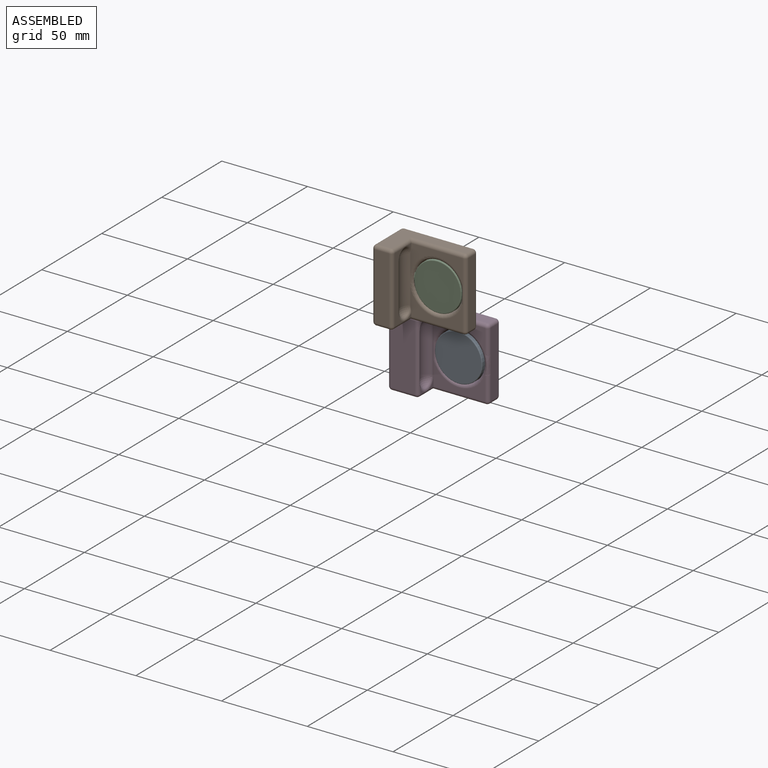
[diagram: assembled view]
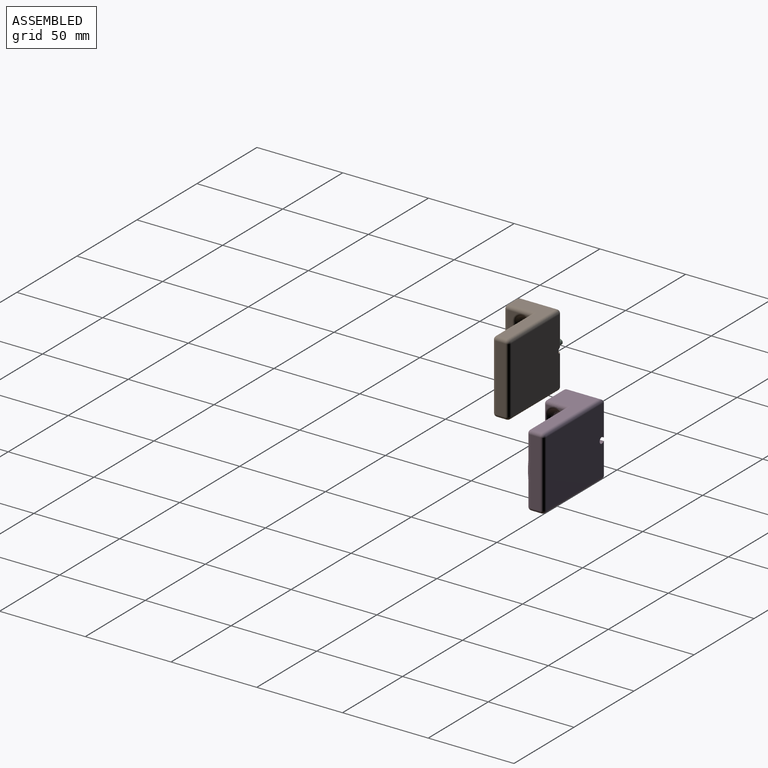
[diagram: assembled view, second angle]
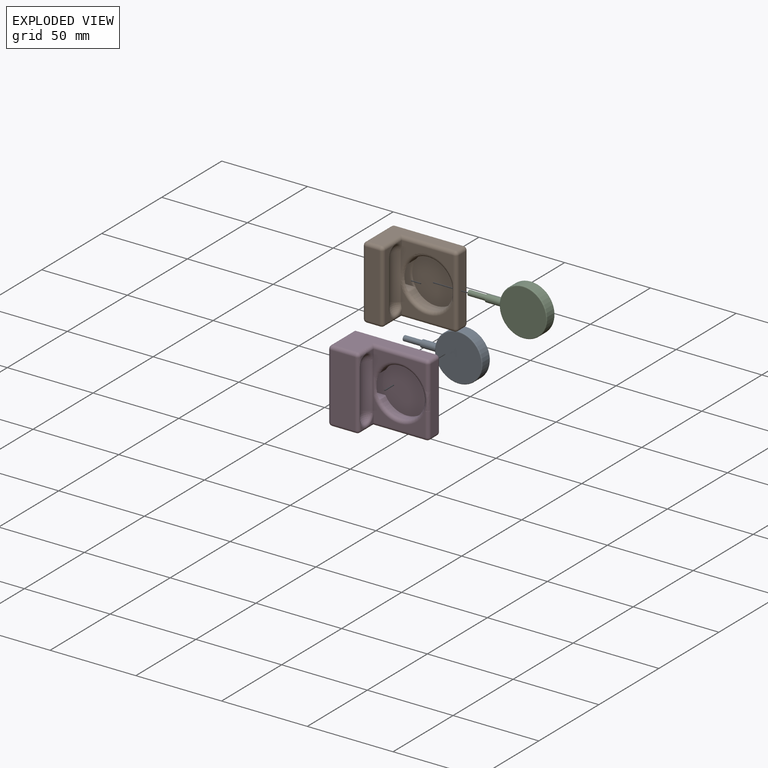
[diagram: exploded view]
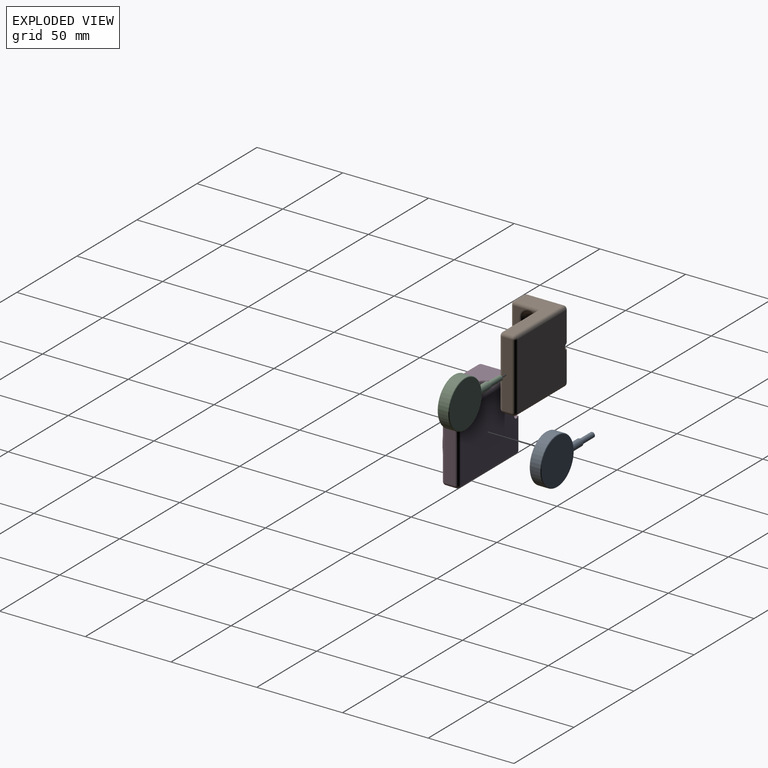
[diagram: exploded view, second angle]
ASSEMBLY  parts=4 mates=2
PART A: 9 faces, bbox 48.8x6.8x29.9 mm
  f0: cylinder r=2.1mm len=9.66mm, axis (1,0,0), area 126.4mm2, adj f1,f4
  f1: plane 4.2x4.2mm, normal (-1,0,0), area 6.8mm2, adj f0,f2
  f2: cylinder r=1.5mm len=10.5mm, axis (1,0,0), area 99mm2, adj f1,f3
  f3: plane 3x3mm, normal (-1,0,0), area 7.1mm2, adj f2
  f4: cylinder r=13.83mm len=27.65mm, axis (0,1,0), area 485.6mm2, adj f0,f7,f8
  f5: plane 26.65x26.65mm, normal (0,-1,0), area 557.8mm2, adj f8
  f6: plane 26.65x26.65mm, normal (0,1,0), area 557.8mm2, adj f7
  f7: torus R=13.32mm, axis (0,-1,0), area 67.3mm2, adj f4,f6
  f8: torus R=13.32mm, axis (0,-1,0), area 67.3mm2, adj f4,f5
PART B: 58 faces, bbox 44.7x25.4x43.5 mm
  f0: plane 30.57x15.61mm, normal (0,-1,0), area 190.2mm2, adj f2,f3,f6,f41,f42,f56
  f1: cylinder r=2mm len=17.85mm, axis (0,0,1), area 56.1mm2, adj f10,f29,f52,f55
  f2: torus R=6.1mm, axis (1,0,0), area 25.6mm2, adj f0,f3,f5,f6,f14,f24,f27
  f3: cylinder r=2mm len=27.18mm, axis (0,0,1), area 7.9mm2, adj f0,f2,f4,f12,f28,f56
  f4: torus R=6.1mm, axis (1,0,0), area 25.6mm2, adj f3,f5,f11,f13,f26,f27,f28
  f5: plane 38.58x6.87mm, normal (1,0,0), area 125.9mm2, adj f2,f4,f22,f24,f26,f27
  f6: plane 2.53x1.81mm, normal (1,0,0), area 1.9mm2, adj f0,f2,f24
  f7: plane 40x21.37mm, normal (0,0,1), area 351mm2, adj f17,f23,f26,f40,f45,f50
  f8: plane 38.58x8mm, normal (0,-1,0), area 308.6mm2, adj f16,f19,f22,f23
  f9: plane 40x21.37mm, normal (0,0,-1), area 351mm2, adj f18,f19,f24,f41,f46,f51
  f10: plane 38.58x21.37mm, normal (-1,0,0), area 741.8mm2, adj f1,f16,f17,f18,f33,f34,f35,f36
  f11: plane 2.53x1.81mm, normal (1,0,0), area 1.9mm2, adj f4,f26,f28
  f12: cylinder r=5.7mm len=27.18mm, axis (0,0,1), area 283.3mm2, adj f3,f13,f14,f27
  f13: sphere r=5.7mm, area 39.8mm2, adj f4,f12
  f14: sphere r=5.7mm, area 39.8mm2, adj f2,f12
  f15: sphere r=2mm, area 6.3mm2, adj f16,f18,f19
  f16: cylinder r=2mm len=38.58mm, axis (0,0,1), area 121.2mm2, adj f8,f10,f15,f20
  f17: cylinder r=2mm len=21.37mm, axis (0,1,0), area 67.1mm2, adj f7,f10,f20,f52
  f18: cylinder r=2mm len=21.37mm, axis (0,-1,0), area 67.1mm2, adj f9,f10,f15,f53
  f19: cylinder r=2mm len=8mm, axis (-1,0,0), area 25.1mm2, adj f8,f9,f15,f21
  f20: sphere r=2mm, area 6.3mm2, adj f16,f17,f23
  f21: sphere r=2mm, area 6.3mm2, adj f19,f22,f24
  f22: cylinder r=2mm len=38.58mm, axis (0,0,-1), area 121.2mm2, adj f5,f8,f21,f25
  f23: cylinder r=2mm len=8mm, axis (1,0,0), area 25.1mm2, adj f7,f8,f20,f25
  f24: cylinder r=2mm len=15.74mm, axis (0,1,0), area 45.7mm2, adj f2,f5,f6,f9,f21,f41
  f25: sphere r=2mm, area 6.3mm2, adj f22,f23,f26
  f26: cylinder r=2mm len=15.74mm, axis (0,-1,0), area 45.7mm2, adj f4,f5,f7,f11,f25,f40
  f27: cylinder r=2mm len=27.18mm, axis (0,0,1), area 49.7mm2, adj f2,f4,f5,f12
  f28: plane 30.57x15.61mm, normal (0,-1,0), area 190.2mm2, adj f3,f4,f11,f40,f42,f56
  f29: plane 40x38.58mm, normal (0,1,0), area 1541.7mm2, adj f1,f47,f50,f51,f54,f55
  f30: plane 38.58x5.63mm, normal (1,0,0), area 217mm2, adj f42,f45,f46,f47
  f31: cylinder r=14mm len=28mm, axis (0,-1,0), area 377.6mm2, adj f32,f37,f38,f56,f57
  f32: plane 28x28mm, normal (0,-1,0), area 615.8mm2, adj f31,f39
  f33: plane 14x13.47mm, normal (0,-1,0), area 164.4mm2, adj f10,f34,f36,f39,f55
  f34: plane 13.77x5.77mm, normal (0,0,-1), area 79.2mm2, adj f10,f33,f35,f37,f39
  f35: plane 14.81x14.59mm, normal (0,1,0), area 187.7mm2, adj f10,f34,f36,f37,f38,f56
  f36: plane 13.77x5.77mm, normal (0,0,1), area 79.2mm2, adj f10,f33,f35,f38,f39
  f37: cylinder r=2mm len=6.18mm, axis (0,-1,0), area 11.3mm2, adj f31,f34,f35,f39,f56
  f38: cylinder r=2mm len=6.18mm, axis (0,-1,0), area 11.3mm2, adj f31,f35,f36,f39,f56
  f39: torus R=15.23mm, axis (0,1,0), area 19.8mm2, adj f32,f33,f34,f36,f37,f38
  f40: cylinder r=2mm len=32mm, axis (1,0,0), area 97.4mm2, adj f7,f26,f28,f43
  f41: cylinder r=2mm len=32mm, axis (-1,0,0), area 97.4mm2, adj f0,f9,f24,f44
  f42: cylinder r=2mm len=38.58mm, axis (0,0,1), area 121.2mm2, adj f0,f28,f30,f43,f44,f57
  f43: sphere r=2mm, area 6.3mm2, adj f40,f42,f45
  f44: sphere r=2mm, area 6.3mm2, adj f41,f42,f46
  f45: cylinder r=2mm len=5.63mm, axis (0,1,0), area 17.7mm2, adj f7,f30,f43,f48
  f46: cylinder r=2mm len=5.63mm, axis (0,-1,0), area 17.7mm2, adj f9,f30,f44,f49
  f47: cylinder r=2mm len=38.58mm, axis (0,0,-1), area 121.2mm2, adj f29,f30,f48,f49
  f48: sphere r=2mm, area 6.3mm2, adj f45,f47,f50
  f49: sphere r=2mm, area 6.3mm2, adj f46,f47,f51
  f50: cylinder r=2mm len=40mm, axis (-1,0,0), area 125.7mm2, adj f7,f29,f48,f52
  f51: cylinder r=2mm len=40mm, axis (1,0,0), area 125.7mm2, adj f9,f29,f49,f53
  f52: sphere r=2mm, area 6.3mm2, adj f1,f17,f50
  f53: sphere r=2mm, area 6.3mm2, adj f18,f51,f54
  f54: cylinder r=2mm len=17.85mm, axis (0,0,1), area 56.1mm2, adj f10,f29,f53,f55
  f55: cylinder r=1.75mm len=3.5mm, axis (0,-1,0), area 19.1mm2, adj f1,f10,f29,f33,f54
  f56: torus R=16mm, axis (0,1,0), area 241mm2, adj f0,f3,f28,f31,f35,f37,f38,f57
  f57: bspline ~11.91x2.19mm, area 25.2mm2, adj f31,f42,f56
PART C: same geometry as A
PART D: 63 faces, bbox 52.1x24.3x43.7 mm
  f0: plane 30x13.73mm, normal (0,-1,0), area 184mm2, adj f7,f14,f20,f21,f42,f50
  f1: plane 2.53x1.81mm, normal (1,0,0), area 1.9mm2, adj f23,f24,f34
  f2: plane 4.36x3.78mm, normal (1,0,0), area 5.4mm2, adj f15,f25,f62
  f3: cylinder r=14mm len=28mm, axis (0,-1,0), area 296.9mm2, adj f7,f27,f30,f31
  f4: cylinder r=1.75mm len=3.5mm, axis (0,-1,0), area 27.9mm2, adj f5,f6,f8,f32
  f5: plane 3.15x0.31mm, normal (0,0,-1), area 1mm2, adj f4,f8,f13,f32
  f6: plane 3.15x0.31mm, normal (0,0,1), area 1mm2, adj f4,f8,f13,f32
  f7: torus R=16mm, axis (0,1,0), area 253mm2, adj f0,f3,f15,f28,f30,f31,f33,f53
  f8: plane 48x38.58mm, normal (0,1,0), area 1842mm2, adj f4,f5,f6,f13,f40,f48,f49
  f9: plane 2.53x1.81mm, normal (1,0,0), area 1.9mm2, adj f24,f25,f59
  f10: plane 46x18.65mm, normal (0,0,-1), area 453.2mm2, adj f34,f35,f37,f38,f39,f40,f41,f42
  f11: plane 46x18.65mm, normal (0,0,1), area 453.2mm2, adj f47,f48,f54,f55,f59,f60,f61,f62
  f12: plane 38.58x14mm, normal (0,-1,0), area 540.1mm2, adj f24,f38,f46,f54
  f13: plane 38.58x20.65mm, normal (-1,0,0), area 708.5mm2, adj f5,f6,f8,f30,f31,f32,f33,f39
  f14: plane 4.36x3.78mm, normal (1,0,0), area 5.4mm2, adj f0,f23,f37
  f15: plane 30x13.73mm, normal (0,-1,0), area 184mm2, adj f2,f7,f20,f22,f56,f60
  f16: plane 38.58x6.27mm, normal (1,0,0), area 233mm2, adj f41,f49,f50,f53,f55,f56
  f17: cylinder r=5.7mm len=27.18mm, axis (0,0,1), area 283.4mm2, adj f18,f19,f20,f26
  f18: sphere r=5.7mm, area 39.8mm2, adj f17,f22,f25
  f19: sphere r=5.7mm, area 39.8mm2, adj f17,f21,f23
  f20: cylinder r=2mm len=27.18mm, axis (0,0,1), area 45.6mm2, adj f0,f15,f17,f21,f22,f28
  f21: bspline ~3.33x1.94mm, area 2mm2, adj f0,f19,f20,f23
  f22: bspline ~3.33x1.94mm, area 2mm2, adj f15,f18,f20,f25
  f23: torus R=6.1mm, axis (1,0,0), area 26.6mm2, adj f1,f14,f19,f21,f24,f26,f35
  f24: cylinder r=2mm len=38.58mm, axis (0,0,-1), area 99mm2, adj f1,f9,f12,f23,f25,f26,f36,f57
  f25: torus R=6.1mm, axis (1,0,0), area 26.6mm2, adj f2,f9,f18,f22,f24,f26,f61
  f26: cylinder r=2mm len=27.18mm, axis (0,0,1), area 30.3mm2, adj f17,f23,f24,f25
  f27: plane 28x28mm, normal (0,-1,0), area 615.8mm2, adj f3,f29
  f28: bspline ~11.91x2.19mm, area 16.9mm2, adj f7,f20,f33
  f29: cylinder r=14mm len=14mm, axis (0,-1,0), area 11.7mm2, adj f27,f30,f31,f32
  f30: plane 20.95x5.92mm, normal (0,0,-1), area 122mm2, adj f3,f7,f13,f29,f32,f33
  f31: plane 20.95x5.92mm, normal (0,0,1), area 122mm2, adj f3,f7,f13,f29,f32,f33
  f32: plane 20.88x14mm, normal (0,-1,0), area 264.7mm2, adj f4,f5,f6,f13,f29,f30,f31
  f33: plane 20.77x14.21mm, normal (0,1,0), area 271.3mm2, adj f7,f13,f28,f30,f31
  f34: cylinder r=2mm len=2.53mm, axis (0,1,0), area 7.9mm2, adj f1,f10,f35,f36
  f35: bspline ~5.86x2.3mm, area 12.5mm2, adj f10,f23,f34,f37
  f36: sphere r=2mm, area 6.3mm2, adj f24,f34,f38
  f37: cylinder r=2mm len=5.78mm, axis (0,1,0), area 15mm2, adj f10,f14,f35,f42
  f38: cylinder r=2mm len=14mm, axis (-1,0,0), area 44mm2, adj f10,f12,f36,f43
  f39: cylinder r=2mm len=20.65mm, axis (0,-1,0), area 61.7mm2, adj f10,f13,f40,f43
  f40: cylinder r=2mm len=48mm, axis (1,0,0), area 147.7mm2, adj f8,f10,f39,f44
  f41: cylinder r=2mm len=6mm, axis (0,-1,0), area 18.8mm2, adj f10,f16,f44,f45
  f42: cylinder r=2mm len=32mm, axis (-1,0,0), area 97.4mm2, adj f0,f10,f37,f45
  f43: sphere r=2mm, area 6.3mm2, adj f38,f39,f46
  f44: sphere r=2mm, area 4mm2, adj f40,f41,f49
  f45: sphere r=2mm, area 6.3mm2, adj f41,f42,f50
  f46: cylinder r=2mm len=38.58mm, axis (0,0,1), area 121.2mm2, adj f12,f13,f43,f51
  f47: cylinder r=2mm len=20.65mm, axis (0,1,0), area 61.7mm2, adj f11,f13,f48,f51
  f48: cylinder r=2mm len=48mm, axis (-1,0,0), area 147.7mm2, adj f8,f11,f47,f52
  f49: cylinder r=2mm len=38.58mm, axis (0,0,-1), area 121.2mm2, adj f8,f16,f44,f52
  f50: cylinder r=2mm len=13.72mm, axis (0,0,1), area 43.1mm2, adj f0,f16,f45,f53
  f51: sphere r=2mm, area 6.3mm2, adj f46,f47,f54
  f52: sphere r=2mm, area 4mm2, adj f48,f49,f55
  f53: bspline ~12.89x2.37mm, area 27.3mm2, adj f7,f16,f50,f56
  f54: cylinder r=2mm len=14mm, axis (1,0,0), area 44mm2, adj f11,f12,f51,f57
  f55: cylinder r=2mm len=6mm, axis (0,1,0), area 18.8mm2, adj f11,f16,f52,f58
  f56: cylinder r=2mm len=13.72mm, axis (0,0,1), area 43.1mm2, adj f15,f16,f53,f58
  f57: sphere r=2mm, area 6.3mm2, adj f24,f54,f59
  f58: sphere r=2mm, area 6.3mm2, adj f55,f56,f60
  f59: cylinder r=2mm len=2.53mm, axis (0,-1,0), area 7.9mm2, adj f9,f11,f57,f61
  f60: cylinder r=2mm len=32mm, axis (1,0,0), area 97.4mm2, adj f11,f15,f58,f62
  f61: bspline ~6.22x2.45mm, area 12.5mm2, adj f11,f25,f59,f62
  f62: cylinder r=2mm len=5.78mm, axis (0,-1,0), area 15mm2, adj f2,f11,f60,f61
PLACE A t=(-15.47,-4.18,-83.81)mm
PLACE B t=(-15.96,-31.1,-95.91)mm
PLACE C t=(-14.78,-22.47,-39.39)mm
PLACE D t=(-16.64,-12.8,-140.33)mm
MATE fastened D.f7 <-> A.f4  axis (0,-1,0) through (-1.64,-0.8,-153.69)mm
MATE fastened B.f56 <-> C.f4  axis (0,-1,0) through (-0.96,-19.1,-109.27)mm
